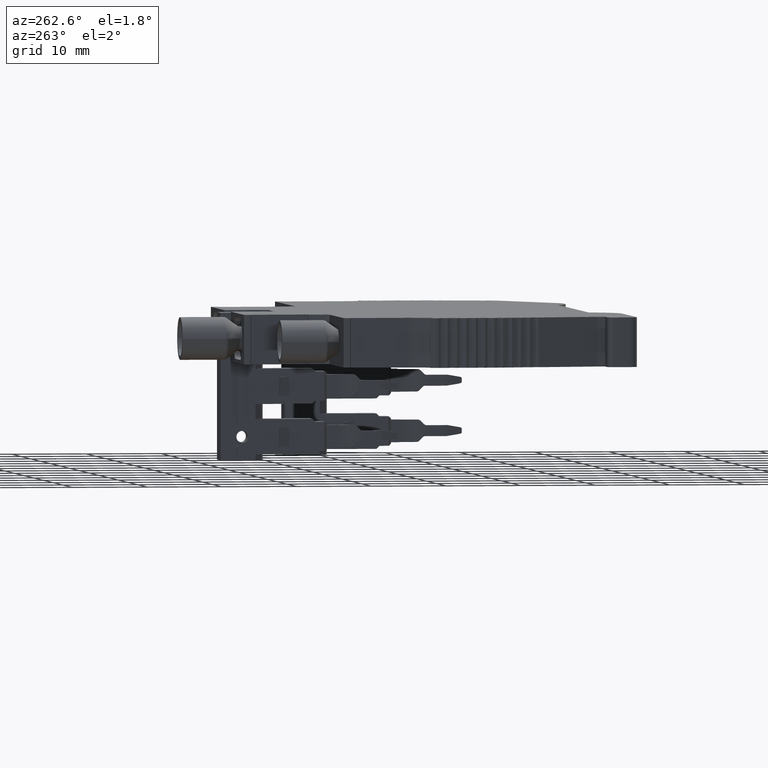
[diagram: clean part render]
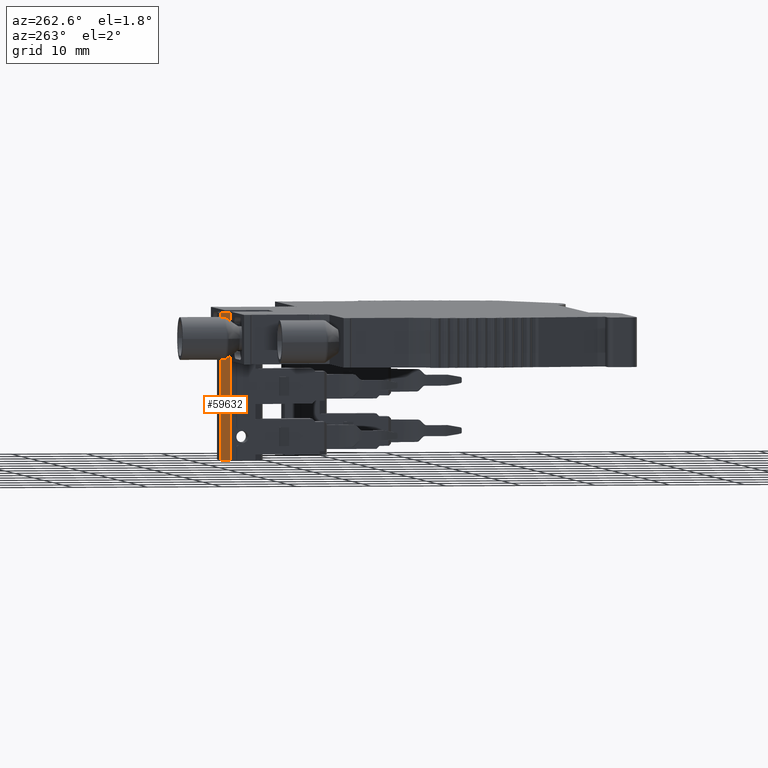
[diagram: same view with one face highlighted and labeled with its STEP entity id]
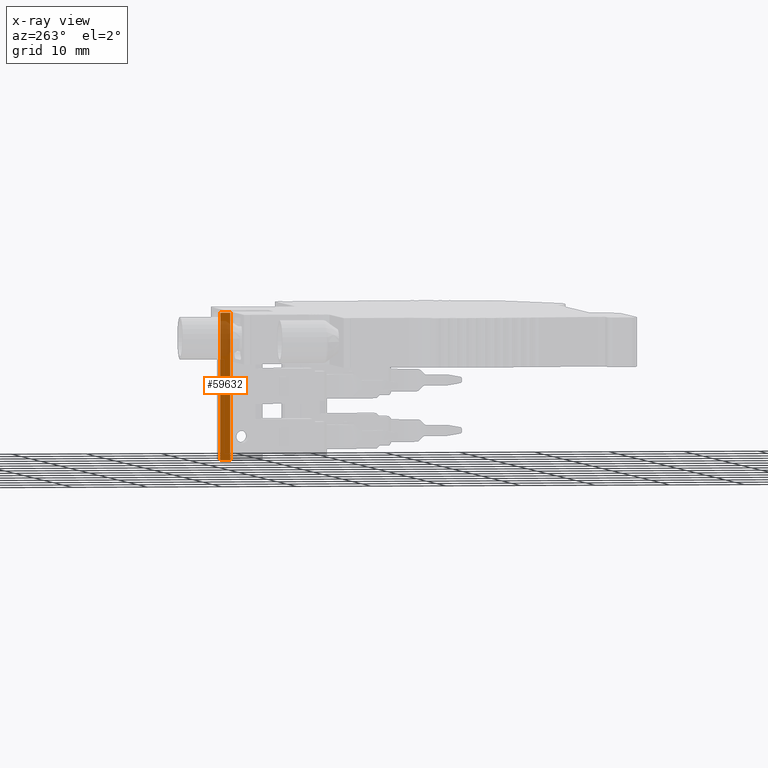
[diagram: x-ray of the same camera — body ghosted, the highlighted face saturated]
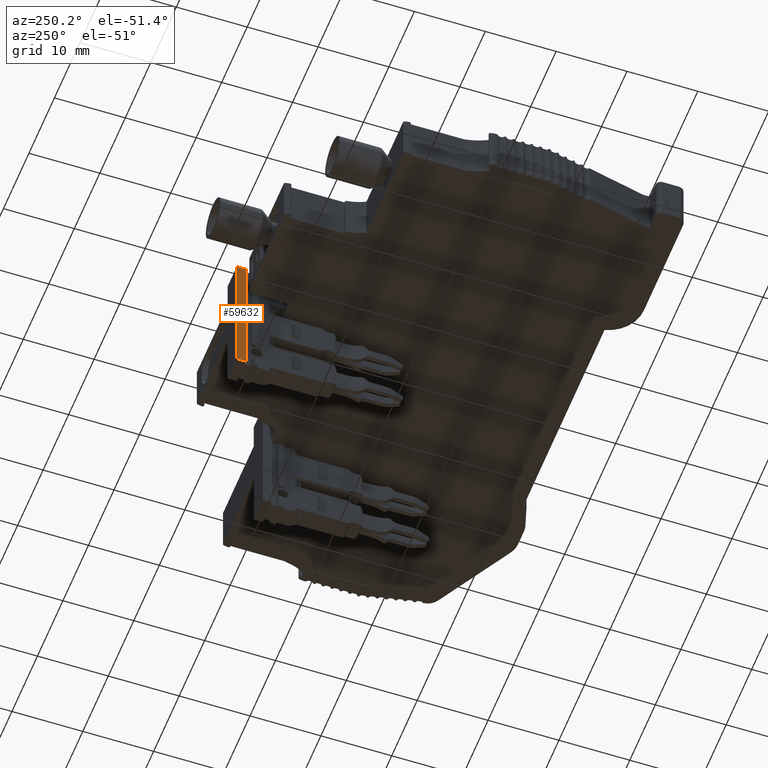
[diagram: same view with one face highlighted and labeled with its STEP entity id]
A machine part, auxiliary view. The second image highlights one B-rep face of the part: STEP entity #59632.
The next image is the same camera in x-ray: the body ghosted, the highlighted face saturated — about 23% of this face is hidden behind the body in this view.
A second angle (auxiliary view) of the same face is appended — the face is thin or edge-on in the first view.
In plain terms, the highlighted planar face has unit normal (-1, -0, -0).
Its self-contained STEP definition (entity closure, byte-faithful):
#11605 = EDGE_LOOP ( 'NONE', ( #57304, #57313, #57293, #57318 ) ) ;
#20311 = CARTESIAN_POINT ( 'NONE',  ( 1924.568079974189900, 461.8155217177759900, -16.09999999994449700 ) ) ;
#20320 = CARTESIAN_POINT ( 'NONE',  ( 1924.568079974189900, 460.5154875758920000, 3.500000000000254900 ) ) ;
#20343 = CARTESIAN_POINT ( 'NONE',  ( 1924.568079974189900, 460.5154875758930200, -16.09999999994460000 ) ) ;
#20354 = CARTESIAN_POINT ( 'NONE',  ( 1924.568079974189900, 461.8155217177750300, 3.500000000000325100 ) ) ;
#22780 = AXIS2_PLACEMENT_3D ( 'NONE', #26164, #26166, #26168 ) ;
#26156 = FACE_OUTER_BOUND ( 'NONE', #11605, .T. ) ;
#26162 = PLANE ( 'NONE',  #22780 ) ;
#26164 = CARTESIAN_POINT ( 'NONE',  ( 1924.568079974189900, 461.6654875758980000, -63.53084736898040300 ) ) ;
#26166 = DIRECTION ( 'NONE',  ( -1.000000000000000000, -1.447904249024956000E-012, -1.715374264788208300E-015 ) ) ;
#26168 = DIRECTION ( 'NONE',  ( 1.715374264778940000E-015, 6.401195592559781000E-015, -1.000000000000000000 ) ) ;
#36095 = VECTOR ( 'NONE', #40987, 1000.000000000000000 ) ;
#36161 = VECTOR ( 'NONE', #41082, 1000.000000000000000 ) ;
#36164 = VECTOR ( 'NONE', #41016, 1000.000000000000000 ) ;
#36179 = VECTOR ( 'NONE', #41047, 1000.000000000000000 ) ;
#40986 = CARTESIAN_POINT ( 'NONE',  ( 1924.568079974189900, 460.5154875758939900, -63.53084736898040300 ) ) ;
#40987 = DIRECTION ( 'NONE',  ( -1.715374265513065200E-015, -1.954276687561995100E-021, 1.000000000000000000 ) ) ;
#40991 = LINE ( 'NONE', #40986, #36095 ) ;
#41016 = DIRECTION ( 'NONE',  ( -1.715374265436815100E-015, -5.266048828528180300E-014, 1.000000000000000000 ) ) ;
#41024 = CARTESIAN_POINT ( 'NONE',  ( 1924.568079974189900, 461.6654875758949900, -16.09999999994449700 ) ) ;
#41035 = LINE ( 'NONE', #41055, #36164 ) ;
#41047 = DIRECTION ( 'NONE',  ( 1.447904249024956000E-012, -1.000000000000000000, -5.266048828527929700E-014 ) ) ;
#41055 = CARTESIAN_POINT ( 'NONE',  ( 1924.568079974189900, 461.8155217177779800, -63.53084736898029000 ) ) ;
#41056 = LINE ( 'NONE', #41024, #36179 ) ;
#41082 = DIRECTION ( 'NONE',  ( -1.447904249024956000E-012, 1.000000000000000000, 5.266048828527929700E-014 ) ) ;
#41098 = LINE ( 'NONE', #41101, #36161 ) ;
#41101 = CARTESIAN_POINT ( 'NONE',  ( 1924.568079974204900, 451.4158919309110200, 3.499999999999780200 ) ) ;
#45594 = VERTEX_POINT ( 'NONE', #20343 ) ;
#45595 = VERTEX_POINT ( 'NONE', #20320 ) ;
#45609 = VERTEX_POINT ( 'NONE', #20354 ) ;
#45627 = VERTEX_POINT ( 'NONE', #20311 ) ;
#57293 = ORIENTED_EDGE ( 'NONE', *, *, #61229, .F. ) ;
#57304 = ORIENTED_EDGE ( 'NONE', *, *, #61215, .T. ) ;
#57313 = ORIENTED_EDGE ( 'NONE', *, *, #61240, .T. ) ;
#57318 = ORIENTED_EDGE ( 'NONE', *, *, #61234, .T. ) ;
#59632 = ADVANCED_FACE ( 'NONE', ( #26156 ), #26162, .T. ) ;
#61215 = EDGE_CURVE ( 'NONE', #45594, #45595, #40991, .T. ) ;
#61229 = EDGE_CURVE ( 'NONE', #45627, #45609, #41035, .T. ) ;
#61234 = EDGE_CURVE ( 'NONE', #45627, #45594, #41056, .T. ) ;
#61240 = EDGE_CURVE ( 'NONE', #45595, #45609, #41098, .T. ) ;